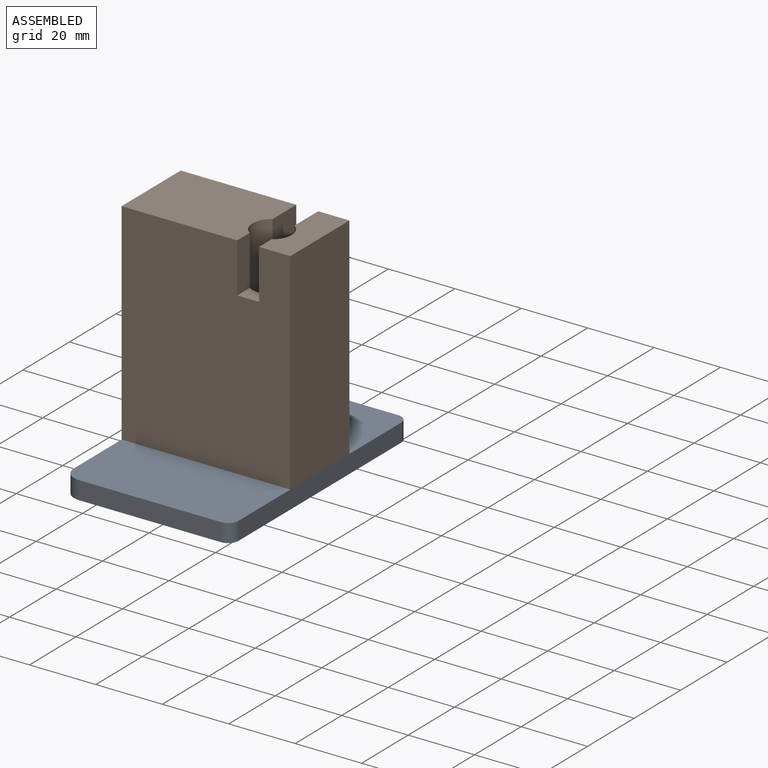
[diagram: assembled view]
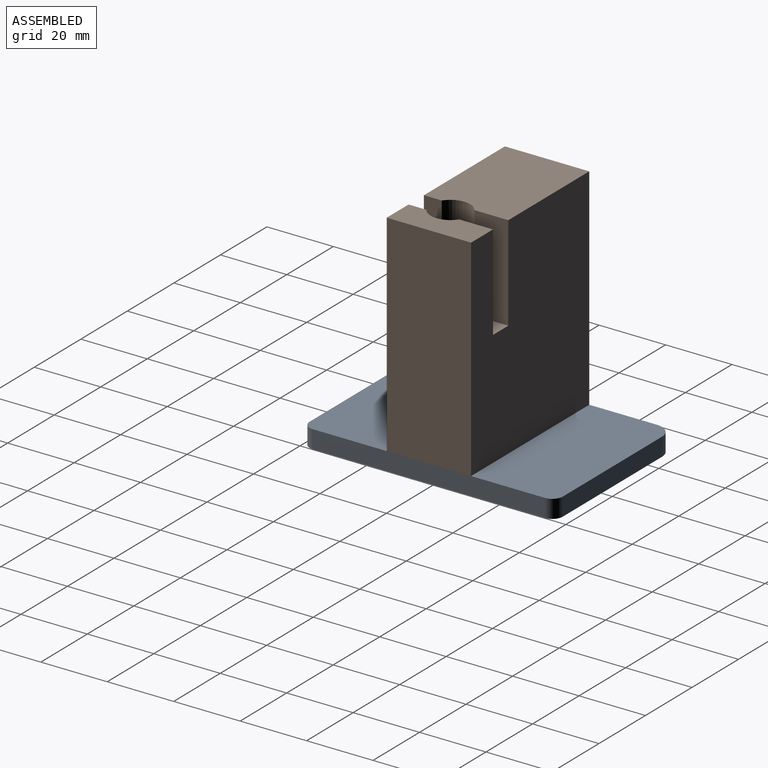
[diagram: assembled view, second angle]
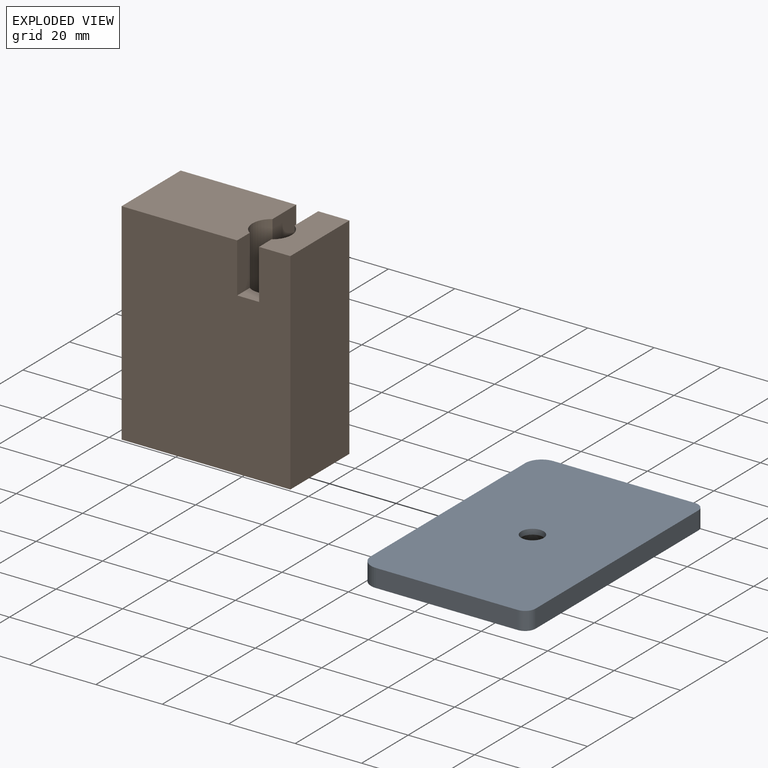
[diagram: exploded view]
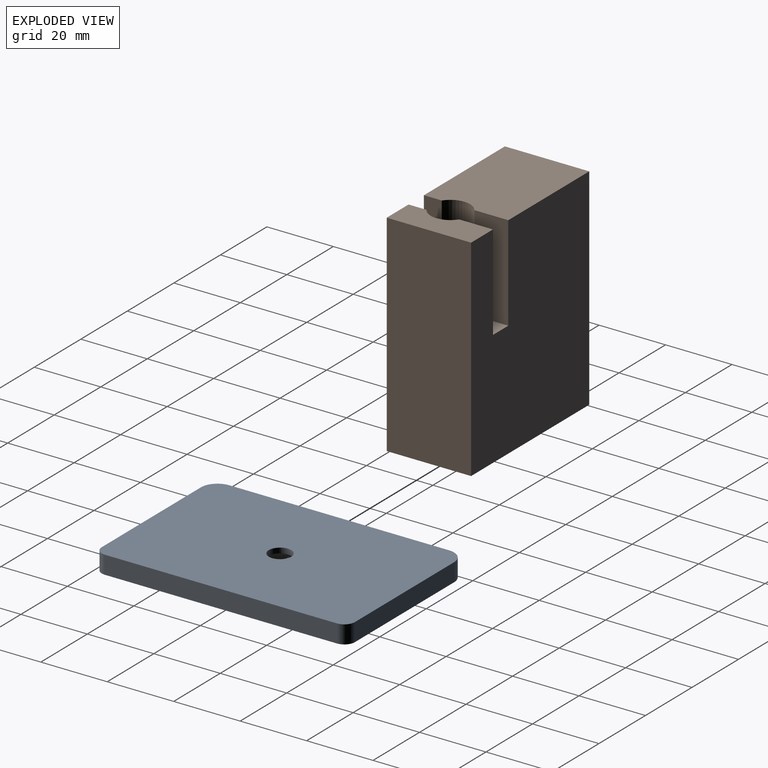
[diagram: exploded view, second angle]
ASSEMBLY  parts=2 mates=3
PART A: 14 faces, bbox 50.8x5.5x76.2 mm
  f0: plane 76.2x50.8mm, normal (0,1,0), area 3820mm2, adj f2,f3,f4,f5,f6,f7,f8,f11
  f1: plane 76.2x50.8mm, normal (0,-1,0), area 3713mm2, adj f4,f5,f6,f7,f8,f9,f10,f11
  f2: cylinder r=3.38mm len=6.76mm, axis (0,-1,0), area 16.9mm2, adj f0,f3,f10
  f3: cylinder r=3.38mm len=6.76mm, axis (0,-1,0), area 16.9mm2, adj f0,f2,f9
  f4: plane 42.64x5.46mm, normal (0,0,1), area 232.8mm2, adj f0,f1,f5,f13
  f5: cylinder r=3.17mm len=5.46mm, axis (0,1,0), area 27.2mm2, adj f0,f1,f4,f6
  f6: plane 69.85x5.46mm, normal (1,0,0), area 381.5mm2, adj f0,f1,f5,f7
  f7: cylinder r=3.17mm len=5.46mm, axis (0,1,0), area 27.2mm2, adj f0,f1,f6,f8
  f8: plane 42.64x5.46mm, normal (0,0,-1), area 232.8mm2, adj f0,f1,f7,f12
  f9: cone r=7.08mm half-angle=41deg, axis (0,-1,0), area 81.6mm2, adj f1,f3,f10
  f10: cone r=7.08mm half-angle=41deg, axis (0,-1,0), area 81.6mm2, adj f1,f2,f9
  f11: plane 66.22x5.46mm, normal (-1,0,0), area 361.7mm2, adj f0,f1,f12,f13
  f12: cylinder r=4.99mm len=5.46mm, axis (0,1,0), area 42.8mm2, adj f0,f1,f8,f11
  f13: cylinder r=4.99mm len=5.46mm, axis (0,1,0), area 42.8mm2, adj f0,f1,f4,f11
PART B: 20 faces, bbox 50.8x63.5x25.4 mm
  f0: plane 63.5x50.8mm, normal (0,0,1), area 3126.8mm2, adj f1,f5,f6,f7,f11,f12,f15,f19
  f1: plane 50.8x25.4mm, normal (0,-1,0), area 1269.8mm2, adj f0,f15,f16,f17,f18,f19
  f2: plane 11.84x11.84mm, normal (0,1,0), area 110mm2, adj f3,f4
  f3: cylinder r=5.92mm len=50.8mm, axis (0,1,0), area 791.5mm2, adj f2,f4,f6,f7,f9,f10,f11
  f4: cylinder r=5.92mm len=50.8mm, axis (0,1,0), area 791.5mm2, adj f2,f3,f5,f7,f8,f9,f12
  f5: plane 14.99x5.38mm, normal (1,0,0), area 80.6mm2, adj f0,f4,f7,f12
  f6: plane 14.99x5.38mm, normal (-1,0,0), area 80.6mm2, adj f0,f3,f7,f11
  f7: plane 6.61x5.38mm, normal (0,1,0), area 31mm2, adj f0,f3,f4,f5,f6
  f8: plane 28.7x10.2mm, normal (1,0,0), area 292.8mm2, adj f4,f9,f12,f16
  f9: plane 10.2x6.61mm, normal (0,1,0), area 62.8mm2, adj f3,f4,f8,f10,f16
  f10: plane 28.7x10.2mm, normal (-1,0,0), area 292.8mm2, adj f3,f9,f11,f16
  f11: plane 25.4x9.4mm, normal (0,1,0), area 220.6mm2, adj f0,f3,f6,f10,f15,f16
  f12: plane 34.8x25.4mm, normal (0,1,0), area 865.8mm2, adj f0,f4,f5,f8,f16,f19
  f13: cone r=2.81mm half-angle=59deg, axis (0,-1,0), area 11.9mm2, adj f14,f17
  f14: cone r=2.81mm half-angle=59deg, axis (0,-1,0), area 11.9mm2, adj f13,f18
  f15: plane 63.5x25.4mm, normal (1,0,0), area 1612.9mm2, adj f0,f1,f11,f16
  f16: plane 63.5x50.8mm, normal (0,0,-1), area 3036.3mm2, adj f1,f8,f9,f10,f11,f12,f15,f19
  f17: cylinder r=2.55mm len=16.51mm, axis (0,-1,0), area 132.4mm2, adj f1,f13,f18
  f18: cylinder r=2.55mm len=16.51mm, axis (0,-1,0), area 132.4mm2, adj f1,f14,f17
  f19: plane 63.5x25.4mm, normal (-1,0,0), area 1612.9mm2, adj f0,f1,f12,f16
PLACE A rot(axis=(1,0,0),90deg) t=(-167.95,-99.2,-57.92)mm
PLACE B rot(axis=(1,0,0),90deg) t=(-167.95,-99.2,5.58)mm
MATE planar B.f19 <-> A.f11  axis (-1,0,0) through (-167.95,-99.2,-26.17)mm
MATE planar B.f1 <-> A.f0  axis (0,0,-1) through (-145.1,-99.2,-57.92)mm
MATE cylindrical B.f17 <-> A.f2  axis (0,0,-1) through (-142.55,-99.2,-49.67)mm
